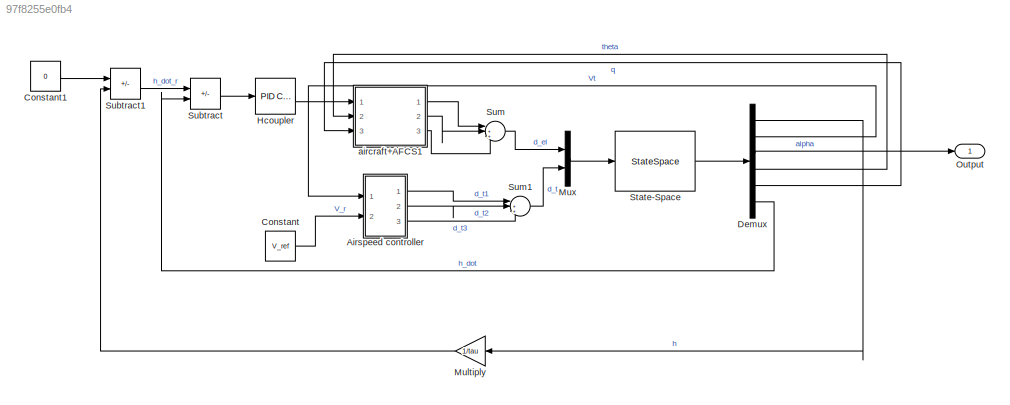
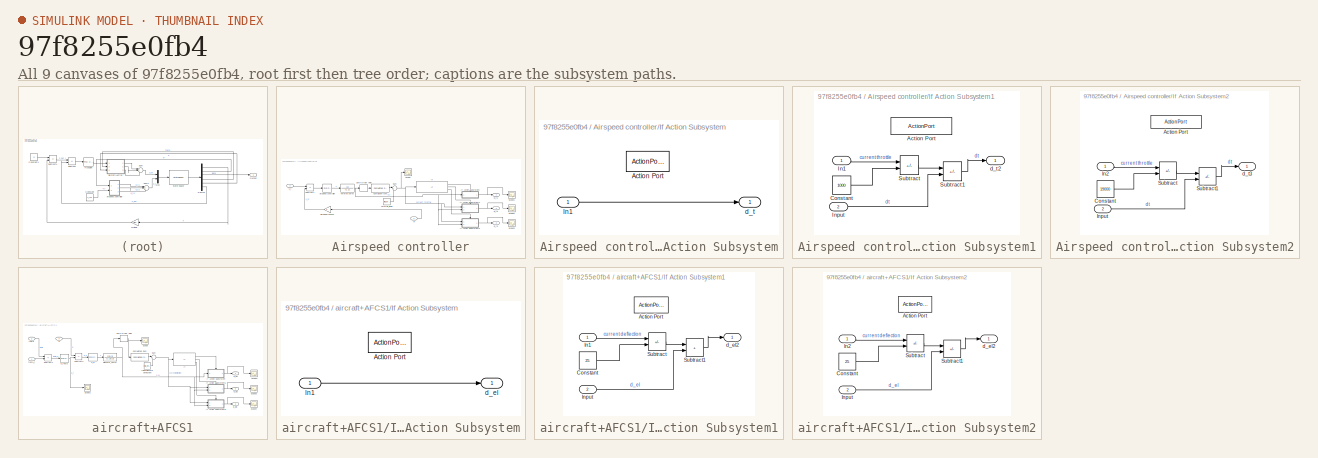
[diagram: thumbnail index - all 9 canvases of the model, root first then tree order]
MODEL slx_97f8255e0fb4
KIND model
CONFIG AbsTol = auto
CONFIG EnableMultiTasking = off
CONFIG FixedStep = auto
CONFIG MaxStep = auto
CONFIG MinStep = auto
CONFIG RelTol = 1e-3
CONFIG SampleTimeConstraint = Unconstrained
CONFIG SolverName = VariableStepAuto
CONFIG StartTime = 0.0
CONFIG StopTime = 10.0
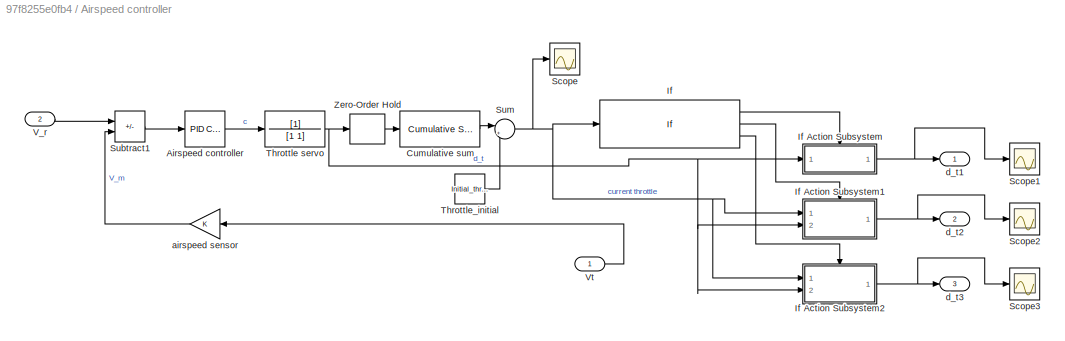
BLOCK [SubSystem] Airspeed controller
  Ports = [2, 3]
  RequestExecContextInheritance = off
BLOCK [Reference] Airspeed controller/Airspeed controller  REF=pid_lib/PID Controller
  Ports = [1, 1]
  SourceBlock = pid_lib/PID Controller
  SourceProductBaseCode = SL
  SourceType = PID 1dof
BLOCK [Reference] Airspeed controller/Cumulative sum  REF=dspmathops/Cumulative
Sum
  Ports = [1, 1]
  SourceBlock = dspmathops/Cumulative\nSum
  SourceProductBaseCode = DS
  SourceType = Cumulative Sum
  UserDataPersistent = on
BLOCK [If] Airspeed controller/If
  ElseIfExpressions = u1 < 1000, u1>19000
  IfExpression = u1 >= 1000 & u1 <= 19000
  Ports = [1, 3]
  ShowElse = off
BLOCK [SubSystem] Airspeed controller/If Action Subsystem
  Ports = [1, 1, 0, 0, 0, 0, 0, 1]
  RequestExecContextInheritance = off
  TreatAsAtomicUnit = on
BLOCK [ActionPort] Airspeed controller/If Action Subsystem/Action Port
BLOCK [Inport] Airspeed controller/If Action Subsystem/In1
BLOCK [Outport] Airspeed controller/If Action Subsystem/d_t
BLOCK [SubSystem] Airspeed controller/If Action Subsystem1
  Ports = [2, 1, 0, 0, 0, 0, 0, 1]
  RequestExecContextInheritance = off
  TreatAsAtomicUnit = on
BLOCK [ActionPort] Airspeed controller/If Action Subsystem1/Action Port
BLOCK [Constant] Airspeed controller/If Action Subsystem1/Constant
  Value = 1000
BLOCK [Inport] Airspeed controller/If Action Subsystem1/In1
BLOCK [Inport] Airspeed controller/If Action Subsystem1/Input
  Port = 2
BLOCK [Sum] Airspeed controller/If Action Subsystem1/Subtract
  IconShape = rectangular
  Inputs = +-
  Ports = [2, 1]
BLOCK [Sum] Airspeed controller/If Action Subsystem1/Subtract1
  IconShape = rectangular
  Inputs = -+
  Ports = [2, 1]
BLOCK [Outport] Airspeed controller/If Action Subsystem1/d_t2
BLOCK [SubSystem] Airspeed controller/If Action Subsystem2
  Ports = [2, 1, 0, 0, 0, 0, 0, 1]
  RequestExecContextInheritance = off
  TreatAsAtomicUnit = on
BLOCK [ActionPort] Airspeed controller/If Action Subsystem2/Action Port
BLOCK [Constant] Airspeed controller/If Action Subsystem2/Constant
  Value = 19000
BLOCK [Inport] Airspeed controller/If Action Subsystem2/In2
BLOCK [Inport] Airspeed controller/If Action Subsystem2/Input
  Port = 2
BLOCK [Sum] Airspeed controller/If Action Subsystem2/Subtract
  IconShape = rectangular
  Inputs = +-
  Ports = [2, 1]
BLOCK [Sum] Airspeed controller/If Action Subsystem2/Subtract1
  IconShape = rectangular
  Inputs = -+
  Ports = [2, 1]
BLOCK [Outport] Airspeed controller/If Action Subsystem2/d_t3
BLOCK [Scope] Airspeed controller/Scope
  Floating = off
  NumInputPorts = 1
  Ports = [1]
  ScopeSpecificationString = Simulink.scopes.TimeScopeBlockCfg('CurrentConfiguration', extmgr.ConfigurationSet(extmgr.Configuration('Core','General UI',true),extmgr.Configuration('Core','Source UI',true),extmgr.Configuration('Sources','WiredSimulink',true,'DataLoggingVariableName','ScopeData2'),extmgr.Configuration('Visuals','Time Domain',true,'SerializedDisplays',{struct('MinYLimReal','-1946.45107','MaxYLimReal','27518.05964...<+1401ch>
BLOCK [Scope] Airspeed controller/Scope1
  Floating = off
  NumInputPorts = 1
  Ports = [1]
  ScopeSpecificationString = Simulink.scopes.TimeScopeBlockCfg('CurrentConfiguration', extmgr.ConfigurationSet(extmgr.Configuration('Core','General UI',true),extmgr.Configuration('Core','Source UI',true),extmgr.Configuration('Sources','WiredSimulink',true,'DataLoggingVariableName','ScopeData3'),extmgr.Configuration('Visuals','Time Domain',true,'SerializedDisplays',{struct('MinYLimReal','-99.3905','MaxYLimReal','894.51446','YL...<+1386ch>
BLOCK [Scope] Airspeed controller/Scope2
  Floating = off
  NumInputPorts = 1
  Ports = [1]
  ScopeSpecificationString = Simulink.scopes.TimeScopeBlockCfg('CurrentConfiguration', extmgr.ConfigurationSet(extmgr.Configuration('Core','General UI',true),extmgr.Configuration('Core','Source UI',true),extmgr.Configuration('Sources','WiredSimulink',true,'DataLoggingVariableName','ScopeData4'),extmgr.Configuration('Visuals','Time Domain',true,'SerializedDisplays',{struct('MinYLimReal','-1.00000','MaxYLimReal','1.00000','YLab...<+1413ch>
BLOCK [Scope] Airspeed controller/Scope3
  Floating = off
  NumInputPorts = 1
  Ports = [1]
  ScopeSpecificationString = Simulink.scopes.TimeScopeBlockCfg('CurrentConfiguration', extmgr.ConfigurationSet(extmgr.Configuration('Core','General UI',true),extmgr.Configuration('Core','Source UI',true),extmgr.Configuration('Sources','WiredSimulink',true,'DataLoggingVariableName','ScopeData5'),extmgr.Configuration('Visuals','Time Domain',true,'SerializedDisplays',{struct('MinYLimReal','-5565.03302','MaxYLimReal','919.6357','...<+1431ch>
BLOCK [Sum] Airspeed controller/Subtract1
  IconShape = rectangular
  Inputs = +-
  Ports = [2, 1]
BLOCK [Sum] Airspeed controller/Sum
  Inputs = |++
  Ports = [2, 1]
BLOCK [TransferFcn] Airspeed controller/Throttle servo
  Denominator = [1 1]
BLOCK [Constant] Airspeed controller/Throttle_initial
  Value = Initial_throttle
BLOCK [Inport] Airspeed controller/V_r
  Port = 2
BLOCK [Inport] Airspeed controller/Vt
BLOCK [ZeroOrderHold] Airspeed controller/Zero-Order Hold
  SampleTime = 0.1
BLOCK [Gain] Airspeed controller/airspeed sensor
BLOCK [Outport] Airspeed controller/d_t1
BLOCK [Outport] Airspeed controller/d_t2
  Port = 2
BLOCK [Outport] Airspeed controller/d_t3
  Port = 3
BLOCK [Constant] Constant
  Value = V_ref
BLOCK [Constant] Constant1
  Value = 0
BLOCK [Demux] Demux
  Outputs = 6
  Ports = [1, 6]
BLOCK [Reference] Hcoupler  REF=pid_lib/PID Controller
  Ports = [1, 1]
  SourceBlock = pid_lib/PID Controller
  SourceProductBaseCode = SL
  SourceType = PID 1dof
BLOCK [Gain] Multiply
  Gain = 1/tau
BLOCK [Mux] Mux
  DisplayOption = bar
  Inputs = 2
  Ports = [2, 1]
BLOCK [Outport] Output
BLOCK [StateSpace] State-Space
  A = [0 0 -300 300 0; 0.0001317 -0.0291 2.13 -32.17 -2.895; 3.154e-06 -0.000697 -0.5447 4.55e-13 0.9152; 0 0 0 0 1; -4.699e-21 1.038e-18 0.3303 0 -0.8169]
  B = [0 0; -0.004534 0.001544; -0.001116 -9.493e-07; 0 0 ; -0.05702 0]
  C = [1 0 0 0 0; 0 1 0 0 0; 0 0 1 0 0; 0 0 0 1 0; 0 0 0 0 1; 0 0 -300 300 0]
  ContinuousStateAttributes = {'h', 'Vt', 'alpha', 'theta', 'q'}
  D = [0 0; 0 0; 0 0; 0 0; 0 0; 0 0]
  InitialCondition = [5000; 300; 10.4511; 10.4511; 0]
  Ports = [1, 1]
BLOCK [Sum] Subtract
  IconShape = rectangular
  Inputs = +-
  Ports = [2, 1]
BLOCK [Sum] Subtract1
  IconShape = rectangular
  Inputs = +-
  Ports = [2, 1]
BLOCK [Sum] Sum
  Inputs = |+++
  Ports = [3, 1]
BLOCK [Sum] Sum1
  Inputs = |+++
  Ports = [3, 1]
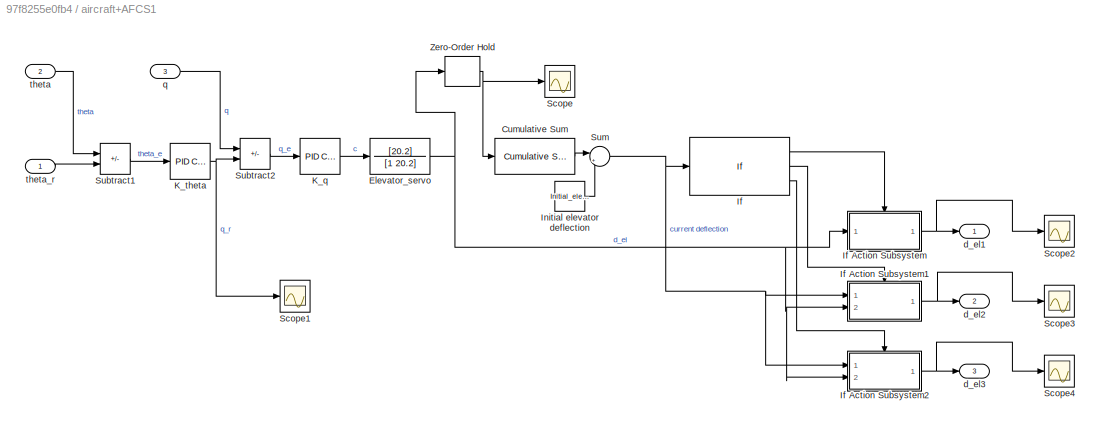
BLOCK [SubSystem] aircraft+AFCS1
  Ports = [3, 3]
  RequestExecContextInheritance = off
BLOCK [Reference] aircraft+AFCS1/Cumulative Sum  REF=dspmathops/Cumulative
Sum
  Ports = [1, 1]
  SourceBlock = dspmathops/Cumulative\nSum
  SourceProductBaseCode = DS
  SourceType = Cumulative Sum
  UserDataPersistent = on
BLOCK [TransferFcn] aircraft+AFCS1/Elevator_servo
  ContinuousStateAttributes = 'elevator_servo'
  Denominator = [1 20.2]
  Numerator = [20.2]
BLOCK [If] aircraft+AFCS1/If
  ElseIfExpressions = u1 < -25, u1 > 25
  IfExpression = u1 >= -25 & u1 <= 25
  Ports = [1, 3]
  ShowElse = off
BLOCK [SubSystem] aircraft+AFCS1/If Action Subsystem
  Ports = [1, 1, 0, 0, 0, 0, 0, 1]
  RequestExecContextInheritance = off
  TreatAsAtomicUnit = on
BLOCK [ActionPort] aircraft+AFCS1/If Action Subsystem/Action Port
BLOCK [Inport] aircraft+AFCS1/If Action Subsystem/In1
BLOCK [Outport] aircraft+AFCS1/If Action Subsystem/d_el
BLOCK [SubSystem] aircraft+AFCS1/If Action Subsystem1
  Ports = [2, 1, 0, 0, 0, 0, 0, 1]
  RequestExecContextInheritance = off
  TreatAsAtomicUnit = on
BLOCK [ActionPort] aircraft+AFCS1/If Action Subsystem1/Action Port
BLOCK [Constant] aircraft+AFCS1/If Action Subsystem1/Constant
  Value = 25
BLOCK [Inport] aircraft+AFCS1/If Action Subsystem1/In1
BLOCK [Inport] aircraft+AFCS1/If Action Subsystem1/Input
  Port = 2
BLOCK [Sum] aircraft+AFCS1/If Action Subsystem1/Subtract
  IconShape = rectangular
  Inputs = --
  Ports = [2, 1]
BLOCK [Sum] aircraft+AFCS1/If Action Subsystem1/Subtract1
  IconShape = rectangular
  Ports = [2, 1]
BLOCK [Outport] aircraft+AFCS1/If Action Subsystem1/d_el2
BLOCK [SubSystem] aircraft+AFCS1/If Action Subsystem2
  Ports = [2, 1, 0, 0, 0, 0, 0, 1]
  RequestExecContextInheritance = off
  TreatAsAtomicUnit = on
BLOCK [ActionPort] aircraft+AFCS1/If Action Subsystem2/Action Port
BLOCK [Constant] aircraft+AFCS1/If Action Subsystem2/Constant
  Value = 25
BLOCK [Inport] aircraft+AFCS1/If Action Subsystem2/In2
BLOCK [Inport] aircraft+AFCS1/If Action Subsystem2/Input
  Port = 2
BLOCK [Sum] aircraft+AFCS1/If Action Subsystem2/Subtract
  IconShape = rectangular
  Inputs = +-
  Ports = [2, 1]
BLOCK [Sum] aircraft+AFCS1/If Action Subsystem2/Subtract1
  IconShape = rectangular
  Inputs = -+
  Ports = [2, 1]
BLOCK [Outport] aircraft+AFCS1/If Action Subsystem2/d_el2
BLOCK [Constant] aircraft+AFCS1/Initial elevator deflection
  Value = Initial_elevator
BLOCK [Reference] aircraft+AFCS1/K_q  REF=pid_lib/PID Controller
  Ports = [1, 1]
  SourceBlock = pid_lib/PID Controller
  SourceProductBaseCode = SL
  SourceType = PID 1dof
BLOCK [Reference] aircraft+AFCS1/K_theta  REF=pid_lib/PID Controller
  Ports = [1, 1]
  SourceBlock = pid_lib/PID Controller
  SourceProductBaseCode = SL
  SourceType = PID 1dof
BLOCK [Scope] aircraft+AFCS1/Scope
  Floating = off
  NumInputPorts = 1
  Ports = [1]
  ScopeSpecificationString = Simulink.scopes.TimeScopeBlockCfg('CurrentConfiguration', extmgr.ConfigurationSet(extmgr.Configuration('Core','General UI',true),extmgr.Configuration('Core','Source UI',true),extmgr.Configuration('Sources','WiredSimulink',true),extmgr.Configuration('Visuals','Time Domain',true,'SerializedDisplays',{struct('MinYLimReal','-120.08032','MaxYLimReal','564.43381','YLabelReal','','MinYLimMag',' 0.00000',...<+1402ch>
BLOCK [Scope] aircraft+AFCS1/Scope1
  Floating = off
  NumInputPorts = 1
  Ports = [1]
  ScopeSpecificationString = Simulink.scopes.TimeScopeBlockCfg('CurrentConfiguration', extmgr.ConfigurationSet(extmgr.Configuration('Core','General UI',true),extmgr.Configuration('Core','Source UI',true),extmgr.Configuration('Sources','WiredSimulink',true,'DataLoggingVariableName','ScopeData1'),extmgr.Configuration('Visuals','Time Domain',true,'SerializedDisplays',{struct('MinYLimReal','-15.46925','MaxYLimReal','22.1951','YLa...<+1398ch>
BLOCK [Scope] aircraft+AFCS1/Scope2
  Floating = off
  NumInputPorts = 1
  Ports = [1]
  ScopeSpecificationString = Simulink.scopes.TimeScopeBlockCfg('CurrentConfiguration', extmgr.ConfigurationSet(extmgr.Configuration('Core','General UI',true),extmgr.Configuration('Core','Source UI',true),extmgr.Configuration('Sources','WiredSimulink',true,'DataLoggingVariableName','ScopeData6'),extmgr.Configuration('Visuals','Time Domain',true,'SerializedDisplays',{struct('MinYLimReal','-15.0897','MaxYLimReal','27.76397','YLa...<+1414ch>
BLOCK [Scope] aircraft+AFCS1/Scope3
  Floating = off
  NumInputPorts = 1
  Ports = [1]
  ScopeSpecificationString = Simulink.scopes.TimeScopeBlockCfg('CurrentConfiguration', extmgr.ConfigurationSet(extmgr.Configuration('Core','General UI',true),extmgr.Configuration('Core','Source UI',true),extmgr.Configuration('Sources','WiredSimulink',true,'DataLoggingVariableName','ScopeData7'),extmgr.Configuration('Visuals','Time Domain',true,'SerializedDisplays',{struct('MinYLimReal','-28.688','MaxYLimReal','249.82291','YLa...<+1385ch>
BLOCK [Scope] aircraft+AFCS1/Scope4
  Floating = off
  NumInputPorts = 1
  Ports = [1]
  ScopeSpecificationString = Simulink.scopes.TimeScopeBlockCfg('CurrentConfiguration', extmgr.ConfigurationSet(extmgr.Configuration('Core','General UI',true),extmgr.Configuration('Core','Source UI',true),extmgr.Configuration('Sources','WiredSimulink',true,'DataLoggingVariableName','ScopeData8'),extmgr.Configuration('Visuals','Time Domain',true,'SerializedDisplays',{struct('MinYLimReal','-94.84967','MaxYLimReal','34.61053','YL...<+1419ch>
BLOCK [Sum] aircraft+AFCS1/Subtract1
  IconShape = rectangular
  Inputs = -+
  Ports = [2, 1]
BLOCK [Sum] aircraft+AFCS1/Subtract2
  IconShape = rectangular
  Inputs = -+
  Ports = [2, 1]
BLOCK [Sum] aircraft+AFCS1/Sum
  Inputs = |++
  Ports = [2, 1]
BLOCK [ZeroOrderHold] aircraft+AFCS1/Zero-Order Hold
  SampleTime = 0.1
BLOCK [Outport] aircraft+AFCS1/d_el1
BLOCK [Outport] aircraft+AFCS1/d_el2
  Port = 2
BLOCK [Outport] aircraft+AFCS1/d_el3
  Port = 3
BLOCK [Inport] aircraft+AFCS1/q
  Port = 3
BLOCK [Inport] aircraft+AFCS1/theta
  Port = 2
BLOCK [Inport] aircraft+AFCS1/theta_r
LINE Airspeed controller/Airspeed controller:1 -> Airspeed controller/Throttle servo:1
LINE Airspeed controller/Cumulative sum:1 -> Airspeed controller/Sum:1
LINE Airspeed controller/If Action Subsystem/In1:1 -> Airspeed controller/If Action Subsystem/d_t:1
LINE Airspeed controller/If Action Subsystem1/Constant:1 -> Airspeed controller/If Action Subsystem1/Subtract:2
LINE Airspeed controller/If Action Subsystem1/In1:1 -> Airspeed controller/If Action Subsystem1/Subtract:1
LINE Airspeed controller/If Action Subsystem1/Input:1 -> Airspeed controller/If Action Subsystem1/Subtract1:2
LINE Airspeed controller/If Action Subsystem1/Subtract1:1 -> Airspeed controller/If Action Subsystem1/d_t2:1
LINE Airspeed controller/If Action Subsystem1/Subtract:1 -> Airspeed controller/If Action Subsystem1/Subtract1:1
NET Airspeed controller/If Action Subsystem1:1 -> Airspeed controller/Scope2:1, Airspeed controller/d_t2:1
LINE Airspeed controller/If Action Subsystem2/Constant:1 -> Airspeed controller/If Action Subsystem2/Subtract:2
LINE Airspeed controller/If Action Subsystem2/In2:1 -> Airspeed controller/If Action Subsystem2/Subtract:1
LINE Airspeed controller/If Action Subsystem2/Input:1 -> Airspeed controller/If Action Subsystem2/Subtract1:2
LINE Airspeed controller/If Action Subsystem2/Subtract1:1 -> Airspeed controller/If Action Subsystem2/d_t3:1
LINE Airspeed controller/If Action Subsystem2/Subtract:1 -> Airspeed controller/If Action Subsystem2/Subtract1:1
NET Airspeed controller/If Action Subsystem2:1 -> Airspeed controller/Scope3:1, Airspeed controller/d_t3:1
NET Airspeed controller/If Action Subsystem:1 -> Airspeed controller/Scope1:1, Airspeed controller/d_t1:1
LINE Airspeed controller/If:1 -> Airspeed controller/If Action Subsystem:ifaction
LINE Airspeed controller/If:2 -> Airspeed controller/If Action Subsystem1:ifaction
LINE Airspeed controller/If:3 -> Airspeed controller/If Action Subsystem2:ifaction
LINE Airspeed controller/Subtract1:1 -> Airspeed controller/Airspeed controller:1
NET Airspeed controller/Sum:1 -> Airspeed controller/If Action Subsystem1:1, Airspeed controller/If Action Subsystem2:1, Airspeed controller/If:1, Airspeed controller/Scope:1
NET Airspeed controller/Throttle servo:1 -> Airspeed controller/If Action Subsystem1:2, Airspeed controller/If Action Subsystem2:2, Airspeed controller/If Action Subsystem:1, Airspeed controller/Zero-Order Hold:1
LINE Airspeed controller/Throttle_initial:1 -> Airspeed controller/Sum:2
LINE Airspeed controller/V_r:1 -> Airspeed controller/Subtract1:1
LINE Airspeed controller/Vt:1 -> Airspeed controller/airspeed sensor:1
LINE Airspeed controller/Zero-Order Hold:1 -> Airspeed controller/Cumulative sum:1
LINE Airspeed controller/airspeed sensor:1 -> Airspeed controller/Subtract1:2
LINE Airspeed controller:1 -> Sum1:1
LINE Airspeed controller:2 -> Sum1:2
LINE Airspeed controller:3 -> Sum1:3
LINE Constant1:1 -> Subtract1:1
LINE Constant:1 -> Airspeed controller:2
LINE Demux:1 -> Multiply:1
LINE Demux:2 -> Airspeed controller:1
LINE Demux:3 -> Output:1
LINE Demux:4 -> aircraft+AFCS1:2
LINE Demux:5 -> aircraft+AFCS1:3
LINE Demux:6 -> Subtract:2
LINE Hcoupler:1 -> aircraft+AFCS1:1
LINE Multiply:1 -> Subtract1:2
LINE Mux:1 -> State-Space:1
LINE State-Space:1 -> Demux:1
LINE Subtract1:1 -> Subtract:1
LINE Subtract:1 -> Hcoupler:1
LINE Sum1:1 -> Mux:2
LINE Sum:1 -> Mux:1
LINE aircraft+AFCS1/Cumulative Sum:1 -> aircraft+AFCS1/Sum:1
NET aircraft+AFCS1/Elevator_servo:1 -> aircraft+AFCS1/If Action Subsystem1:2, aircraft+AFCS1/If Action Subsystem2:2, aircraft+AFCS1/If Action Subsystem:1, aircraft+AFCS1/Zero-Order Hold:1
LINE aircraft+AFCS1/If Action Subsystem/In1:1 -> aircraft+AFCS1/If Action Subsystem/d_el:1
LINE aircraft+AFCS1/If Action Subsystem1/Constant:1 -> aircraft+AFCS1/If Action Subsystem1/Subtract:2
LINE aircraft+AFCS1/If Action Subsystem1/In1:1 -> aircraft+AFCS1/If Action Subsystem1/Subtract:1
LINE aircraft+AFCS1/If Action Subsystem1/Input:1 -> aircraft+AFCS1/If Action Subsystem1/Subtract1:2
LINE aircraft+AFCS1/If Action Subsystem1/Subtract1:1 -> aircraft+AFCS1/If Action Subsystem1/d_el2:1
LINE aircraft+AFCS1/If Action Subsystem1/Subtract:1 -> aircraft+AFCS1/If Action Subsystem1/Subtract1:1
NET aircraft+AFCS1/If Action Subsystem1:1 -> aircraft+AFCS1/Scope3:1, aircraft+AFCS1/d_el2:1
LINE aircraft+AFCS1/If Action Subsystem2/Constant:1 -> aircraft+AFCS1/If Action Subsystem2/Subtract:2
LINE aircraft+AFCS1/If Action Subsystem2/In2:1 -> aircraft+AFCS1/If Action Subsystem2/Subtract:1
LINE aircraft+AFCS1/If Action Subsystem2/Input:1 -> aircraft+AFCS1/If Action Subsystem2/Subtract1:2
LINE aircraft+AFCS1/If Action Subsystem2/Subtract1:1 -> aircraft+AFCS1/If Action Subsystem2/d_el2:1
LINE aircraft+AFCS1/If Action Subsystem2/Subtract:1 -> aircraft+AFCS1/If Action Subsystem2/Subtract1:1
NET aircraft+AFCS1/If Action Subsystem2:1 -> aircraft+AFCS1/Scope4:1, aircraft+AFCS1/d_el3:1
NET aircraft+AFCS1/If Action Subsystem:1 -> aircraft+AFCS1/Scope2:1, aircraft+AFCS1/d_el1:1
LINE aircraft+AFCS1/If:1 -> aircraft+AFCS1/If Action Subsystem:ifaction
LINE aircraft+AFCS1/If:2 -> aircraft+AFCS1/If Action Subsystem1:ifaction
LINE aircraft+AFCS1/If:3 -> aircraft+AFCS1/If Action Subsystem2:ifaction
LINE aircraft+AFCS1/Initial elevator deflection:1 -> aircraft+AFCS1/Sum:2
LINE aircraft+AFCS1/K_q:1 -> aircraft+AFCS1/Elevator_servo:1
NET aircraft+AFCS1/K_theta:1 -> aircraft+AFCS1/Scope1:1, aircraft+AFCS1/Subtract2:2
LINE aircraft+AFCS1/Subtract1:1 -> aircraft+AFCS1/K_theta:1
LINE aircraft+AFCS1/Subtract2:1 -> aircraft+AFCS1/K_q:1
NET aircraft+AFCS1/Sum:1 -> aircraft+AFCS1/If Action Subsystem1:1, aircraft+AFCS1/If Action Subsystem2:1, aircraft+AFCS1/If:1
NET aircraft+AFCS1/Zero-Order Hold:1 -> aircraft+AFCS1/Cumulative Sum:1, aircraft+AFCS1/Scope:1
LINE aircraft+AFCS1/q:1 -> aircraft+AFCS1/Subtract2:1
LINE aircraft+AFCS1/theta:1 -> aircraft+AFCS1/Subtract1:1
LINE aircraft+AFCS1/theta_r:1 -> aircraft+AFCS1/Subtract1:2
LINE aircraft+AFCS1:1 -> Sum:1
LINE aircraft+AFCS1:2 -> Sum:2
LINE aircraft+AFCS1:3 -> Sum:3
note: NET lines group one-source signal fan-out (src -> all destinations, sorted); 1:1 wires keep LINE
